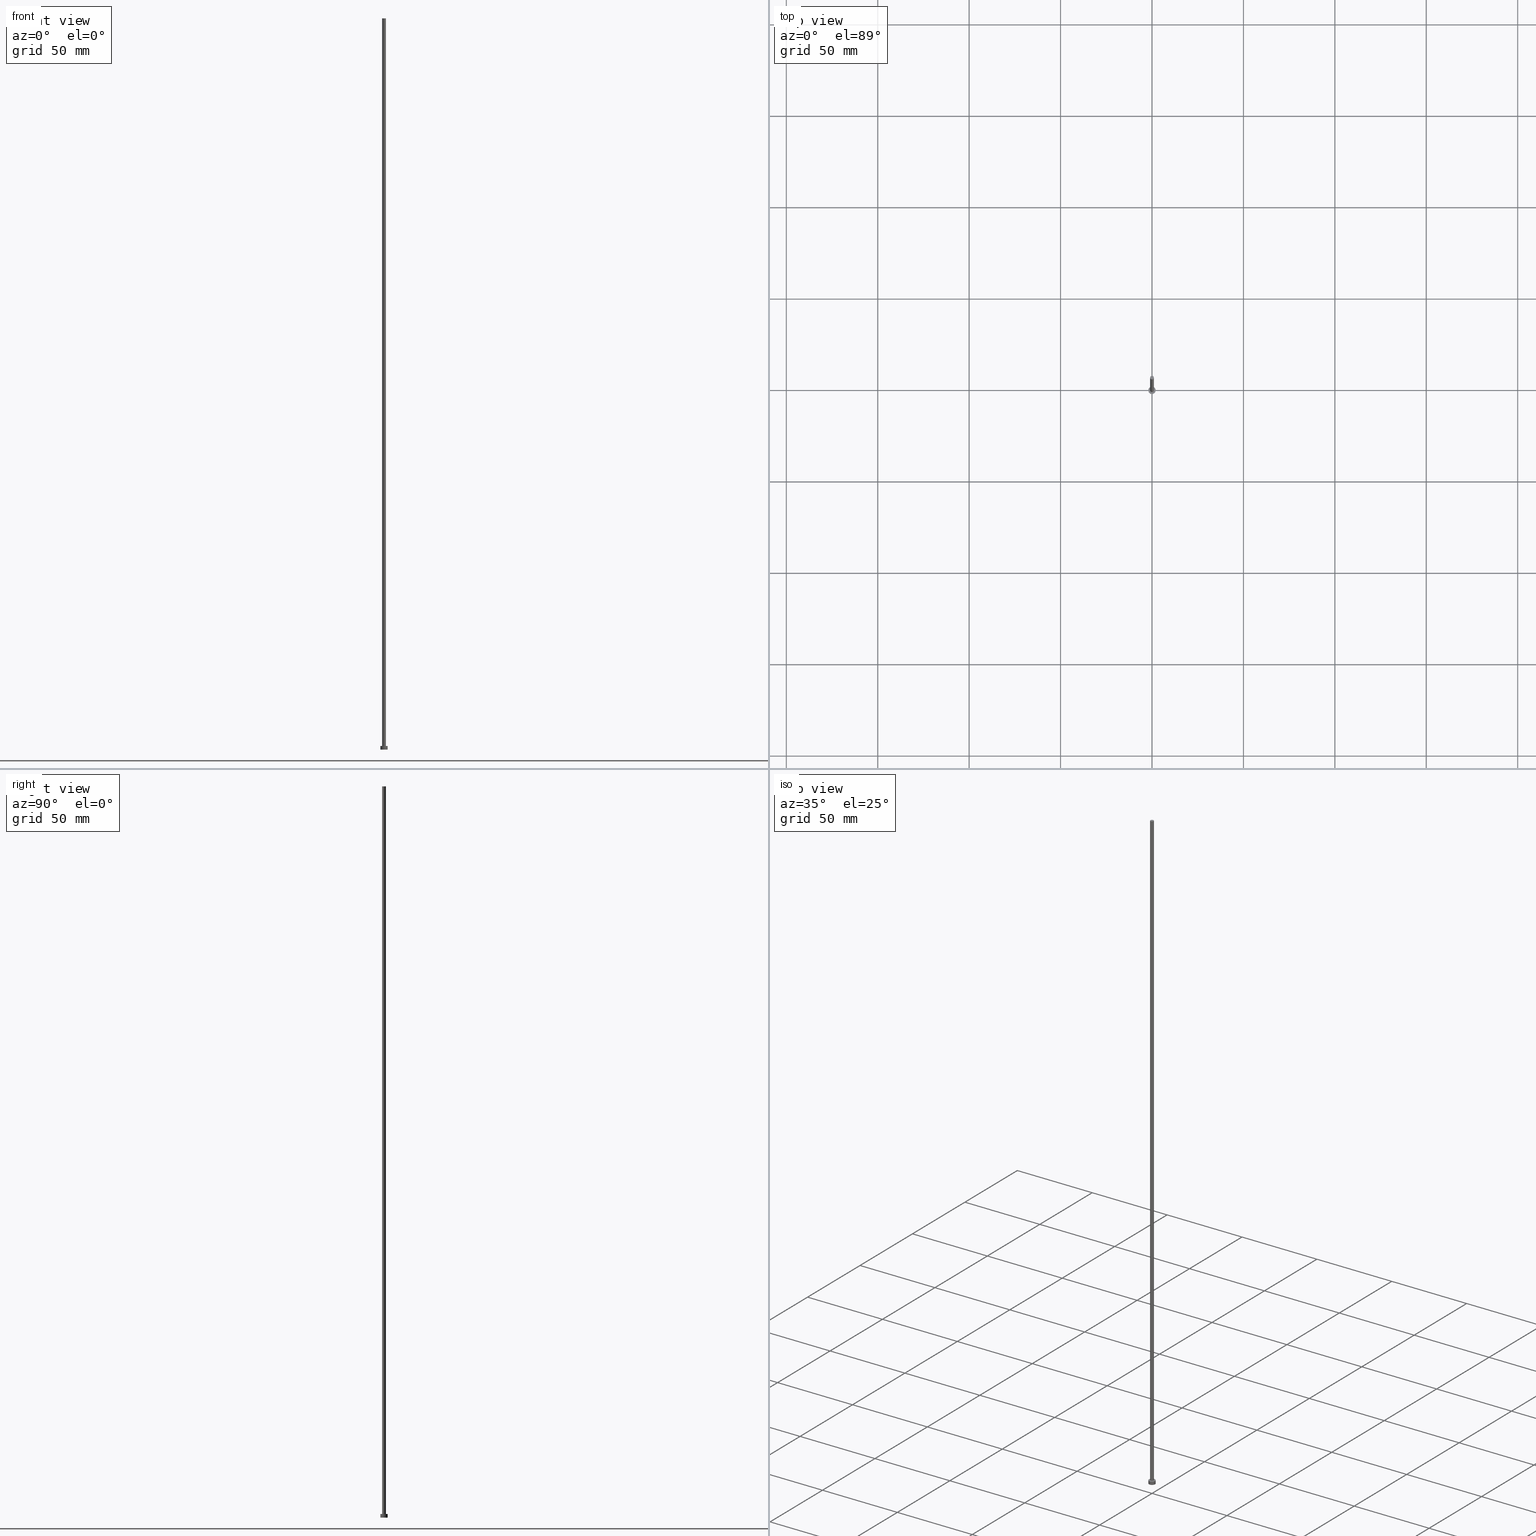
[diagram: canonical four-view strip — front | top / right | iso, engineering-drawing reading convention]
A machine part, canonical four-view strip (front | top / right | iso — engineering-drawing reading convention). The complete STEP part file that produces these views, byte-faithful:
ISO-10303-21;
HEADER;
FILE_DESCRIPTION (( 'STEP AP203' ),
    '1' );
FILE_NAME ('24b4.STEP',
    '2023-02-13T16:42:52',
    ( '' ),
    ( '' ),
    'SwSTEP 2.0',
    'SolidWorks 2019',
    '' );
FILE_SCHEMA (( 'CONFIG_CONTROL_DESIGN' ));
ENDSEC;

DATA;
#1 = AXIS2_PLACEMENT_3D ( 'NONE', #191, #171, #13 ) ;
#2 = ORIENTED_EDGE ( 'NONE', *, *, #123, .T. ) ;
#3 = CALENDAR_DATE ( 2023, 13, 2 ) ;
#4 = CARTESIAN_POINT ( 'NONE',  ( -1.000000000000000000, 0.000000000000000000, 400.0000000000000000 ) ) ;
#5 = LINE ( 'NONE', #135, #17 ) ;
#6 = APPROVAL ( #188, 'NEUR�EN�' ) ;
#7 = PERSON_AND_ORGANIZATION ( #32, #233 ) ;
#8 = LINE ( 'NONE', #113, #173 ) ;
#9 = DIRECTION ( 'NONE',  ( 1.000000000000000000, 0.000000000000000000, 0.000000000000000000 ) ) ;
#10 = DATE_AND_TIME ( #201, #175 ) ;
#11 = CARTESIAN_POINT ( 'NONE',  ( -1.000000000000000000, 0.000000000000000000, 400.0000000000000000 ) ) ;
#12 = DIRECTION ( 'NONE',  ( -0.000000000000000000, -0.000000000000000000, -1.000000000000000000 ) ) ;
#13 = DIRECTION ( 'NONE',  ( 1.000000000000000000, 0.000000000000000000, -0.000000000000000000 ) ) ;
#14 = DIRECTION ( 'NONE',  ( 1.000000000000000000, 0.000000000000000000, 0.000000000000000000 ) ) ;
#15 = CARTESIAN_POINT ( 'NONE',  ( 0.000000000000000000, 0.000000000000000000, 0.000000000000000000 ) ) ;
#16 = PRODUCT_DEFINITION_FORMATION_WITH_SPECIFIED_SOURCE ( 'LIBOVOLN�', '', #220, .NOT_KNOWN. ) ;
#17 = VECTOR ( 'NONE', #75, 1000.000000000000000 ) ;
#18 = ORIENTED_EDGE ( 'NONE', *, *, #84, .F. ) ;
#19 = PRODUCT_DEFINITION ( 'NEZN�M�', '', #16, #176 ) ;
#20 = PERSON_AND_ORGANIZATION_ROLE ( 'classification_officer' ) ;
#21 = AXIS2_PLACEMENT_3D ( 'NONE', #79, #184, #228 ) ;
#22 = ORIENTED_EDGE ( 'NONE', *, *, #124, .T. ) ;
#23 = CARTESIAN_POINT ( 'NONE',  ( 2.000000000000000000, 2.449293598294706414E-16, 0.000000000000000000 ) ) ;
#24 = APPLICATION_CONTEXT ( 'configuration controlled 3d designs of mechanical parts and assemblies' ) ;
#25 = PERSON_AND_ORGANIZATION ( #32, #233 ) ;
#26 = VERTEX_POINT ( 'NONE', #179 ) ;
#27 = DATE_AND_TIME ( #229, #121 ) ;
#28 = ORIENTED_EDGE ( 'NONE', *, *, #126, .F. ) ;
#29 = COORDINATED_UNIVERSAL_TIME_OFFSET ( 1, 0, .AHEAD. ) ;
#30 = COORDINATED_UNIVERSAL_TIME_OFFSET ( 1, 0, .AHEAD. ) ;
#31 = ORIENTED_EDGE ( 'NONE', *, *, #157, .T. ) ;
#32 = PERSON ( 'NEUR�EN�', 'NEUR�EN�', 'NEUR�EN�', ('NEUR�EN�'), ('NEUR�EN�'), ('NEUR�EN�') ) ;
#33 =( LENGTH_UNIT ( ) NAMED_UNIT ( * ) SI_UNIT ( .MILLI., .METRE. ) );
#34 = DIRECTION ( 'NONE',  ( 0.000000000000000000, 0.000000000000000000, 1.000000000000000000 ) ) ;
#35 = DIRECTION ( 'NONE',  ( 0.000000000000000000, 0.000000000000000000, 1.000000000000000000 ) ) ;
#36 = CARTESIAN_POINT ( 'NONE',  ( 2.000000000000000000, 2.449293598294706414E-16, 2.000000000000000000 ) ) ;
#37 = DIRECTION ( 'NONE',  ( 1.000000000000000000, 0.000000000000000000, 0.000000000000000000 ) ) ;
#38 = VECTOR ( 'NONE', #81, 1000.000000000000000 ) ;
#39 = LOCAL_TIME ( 17, 42, 52.00000000000000000, #141 ) ;
#40 = CC_DESIGN_APPROVAL ( #6, ( #16 ) ) ;
#41 = UNCERTAINTY_MEASURE_WITH_UNIT (LENGTH_MEASURE( 1.000000000000000082E-05 ), #33, 'distance_accuracy_value', 'NONE');
#42 = EDGE_CURVE ( 'NONE', #43, #99, #8, .T. ) ;
#43 = VERTEX_POINT ( 'NONE', #185 ) ;
#44 = FACE_OUTER_BOUND ( 'NONE', #88, .T. ) ;
#45 = DIRECTION ( 'NONE',  ( 1.000000000000000000, 0.000000000000000000, 0.000000000000000000 ) ) ;
#46 = COORDINATED_UNIVERSAL_TIME_OFFSET ( 1, 0, .AHEAD. ) ;
#47 = EDGE_LOOP ( 'NONE', ( #89, #2, #103, #167 ) ) ;
#48 = CYLINDRICAL_SURFACE ( 'NONE', #59, 1.000000000000000000 ) ;
#49 = PERSON_AND_ORGANIZATION ( #32, #233 ) ;
#50 = PLANE ( 'NONE',  #187 ) ;
#51 = CARTESIAN_POINT ( 'NONE',  ( 0.000000000000000000, 0.000000000000000000, 2.000000000000000000 ) ) ;
#52 = DATE_TIME_ROLE ( 'creation_date' ) ;
#53 = CARTESIAN_POINT ( 'NONE',  ( 0.000000000000000000, 0.000000000000000000, 400.0000000000000000 ) ) ;
#54 = PLANE ( 'NONE',  #80 ) ;
#55 = ADVANCED_FACE ( 'NONE', ( #226, #106 ), #50, .T. ) ;
#56 = CIRCLE ( 'NONE', #129, 1.000000000000000000 ) ;
#57 = DIRECTION ( 'NONE',  ( -1.000000000000000000, 0.000000000000000000, 0.000000000000000000 ) ) ;
#58 = APPROVAL ( #196, 'NEUR�EN�' ) ;
#59 = AXIS2_PLACEMENT_3D ( 'NONE', #137, #234, #231 ) ;
#60 = PERSON_AND_ORGANIZATION ( #32, #233 ) ;
#61 = ADVANCED_BREP_SHAPE_REPRESENTATION ( '24b4', ( #108, #149 ), #253 ) ;
#62 = CALENDAR_DATE ( 2023, 13, 2 ) ;
#63 = VERTEX_POINT ( 'NONE', #202 ) ;
#64 = EDGE_LOOP ( 'NONE', ( #110, #218, #242, #239 ) ) ;
#65 = CC_DESIGN_PERSON_AND_ORGANIZATION_ASSIGNMENT ( #60, #20, ( #156 ) ) ;
#66 = FACE_OUTER_BOUND ( 'NONE', #64, .T. ) ;
#67 = APPLICATION_CONTEXT ( 'configuration controlled 3d designs of mechanical parts and assemblies' ) ;
#68 = CYLINDRICAL_SURFACE ( 'NONE', #142, 1.000000000000000000 ) ;
#69 = VERTEX_POINT ( 'NONE', #4 ) ;
#70 = DIRECTION ( 'NONE',  ( 0.000000000000000000, 0.000000000000000000, 1.000000000000000000 ) ) ;
#71 = AXIS2_PLACEMENT_3D ( 'NONE', #51, #35, #119 ) ;
#72 = APPROVAL_ROLE ( '' ) ;
#73 = PERSON_AND_ORGANIZATION ( #32, #233 ) ;
#74 = VERTEX_POINT ( 'NONE', #23 ) ;
#75 = DIRECTION ( 'NONE',  ( -0.000000000000000000, -0.000000000000000000, -1.000000000000000000 ) ) ;
#76 = CYLINDRICAL_SURFACE ( 'NONE', #203, 2.000000000000000000 ) ;
#77 = ADVANCED_FACE ( 'NONE', ( #66 ), #164, .T. ) ;
#78 = LINE ( 'NONE', #11, #198 ) ;
#79 = CARTESIAN_POINT ( 'NONE',  ( 0.000000000000000000, 0.000000000000000000, 2.000000000000000000 ) ) ;
#80 = AXIS2_PLACEMENT_3D ( 'NONE', #249, #212, #247 ) ;
#81 = DIRECTION ( 'NONE',  ( -0.000000000000000000, -0.000000000000000000, -1.000000000000000000 ) ) ;
#82 = ADVANCED_FACE ( 'NONE', ( #44 ), #128, .T. ) ;
#83 = CIRCLE ( 'NONE', #159, 2.000000000000000000 ) ;
#84 = EDGE_CURVE ( 'NONE', #63, #74, #83, .T. ) ;
#85 = AXIS2_PLACEMENT_3D ( 'NONE', #186, #213, #37 ) ;
#86 = AXIS2_PLACEMENT_3D ( 'NONE', #96, #246, #210 ) ;
#87 = CC_DESIGN_DATE_AND_TIME_ASSIGNMENT ( #27, #52, ( #19 ) ) ;
#88 = EDGE_LOOP ( 'NONE', ( #22, #243 ) ) ;
#89 = ORIENTED_EDGE ( 'NONE', *, *, #197, .F. ) ;
#90 = CC_DESIGN_SECURITY_CLASSIFICATION ( #156, ( #16 ) ) ;
#91 = ORIENTED_EDGE ( 'NONE', *, *, #157, .F. ) ;
#92 = EDGE_LOOP ( 'NONE', ( #183, #91 ) ) ;
#93 = APPLICATION_PROTOCOL_DEFINITION ( 'international standard', 'config_control_design', 1994, #67 ) ;
#94 = EDGE_LOOP ( 'NONE', ( #166, #180 ) ) ;
#95 = CIRCLE ( 'NONE', #71, 2.000000000000000000 ) ;
#96 = CARTESIAN_POINT ( 'NONE',  ( 0.000000000000000000, 0.000000000000000000, 400.0000000000000000 ) ) ;
#97 = CARTESIAN_POINT ( 'NONE',  ( 1.000000000000000000, 1.224646799147353207E-16, 2.000000000000000000 ) ) ;
#98 = CARTESIAN_POINT ( 'NONE',  ( -2.000000000000000000, 0.000000000000000000, 2.000000000000000000 ) ) ;
#99 = VERTEX_POINT ( 'NONE', #97 ) ;
#100 = CC_DESIGN_APPROVAL ( #177, ( #19 ) ) ;
#101 = CC_DESIGN_PERSON_AND_ORGANIZATION_ASSIGNMENT ( #73, #207, ( #220 ) ) ;
#102 = ADVANCED_FACE ( 'NONE', ( #248 ), #76, .T. ) ;
#103 = ORIENTED_EDGE ( 'NONE', *, *, #126, .T. ) ;
#104 = SHAPE_DEFINITION_REPRESENTATION ( #235, #61 ) ;
#105 = APPLICATION_PROTOCOL_DEFINITION ( 'international standard', 'config_control_design', 1994, #24 ) ;
#106 = FACE_OUTER_BOUND ( 'NONE', #94, .T. ) ;
#107 = AXIS2_PLACEMENT_3D ( 'NONE', #219, #134, #221 ) ;
#108 = MANIFOLD_SOLID_BREP ( 'P�idat vysunut�m3', #194 ) ;
#109 = APPROVAL_STATUS ( 'not_yet_approved' ) ;
#110 = ORIENTED_EDGE ( 'NONE', *, *, #123, .F. ) ;
#111 = CARTESIAN_POINT ( 'NONE',  ( -1.000000000000000000, 0.000000000000000000, 2.000000000000000000 ) ) ;
#112 = CALENDAR_DATE ( 2023, 13, 2 ) ;
#113 = CARTESIAN_POINT ( 'NONE',  ( 1.000000000000000000, 1.224646799147353207E-16, 400.0000000000000000 ) ) ;
#114 = MECHANICAL_CONTEXT ( 'NONE', #67, 'mechanical' ) ;
#115 = APPROVAL_DATE_TIME ( #200, #58 ) ;
#116 = EDGE_CURVE ( 'NONE', #69, #224, #78, .T. ) ;
#117 = APPROVAL_DATE_TIME ( #10, #6 ) ;
#118 = CARTESIAN_POINT ( 'NONE',  ( 0.000000000000000000, 0.000000000000000000, 0.000000000000000000 ) ) ;
#119 = DIRECTION ( 'NONE',  ( 1.000000000000000000, 0.000000000000000000, 0.000000000000000000 ) ) ;
#120 = CC_DESIGN_PERSON_AND_ORGANIZATION_ASSIGNMENT ( #49, #223, ( #19 ) ) ;
#121 = LOCAL_TIME ( 17, 42, 52.00000000000000000, #46 ) ;
#122 = PERSON_AND_ORGANIZATION_ROLE ( 'design_supplier' ) ;
#123 = EDGE_CURVE ( 'NONE', #26, #74, #250, .T. ) ;
#124 = EDGE_CURVE ( 'NONE', #69, #43, #144, .T. ) ;
#125 = PERSON_AND_ORGANIZATION ( #32, #233 ) ;
#126 = EDGE_CURVE ( 'NONE', #74, #63, #214, .T. ) ;
#127 = COORDINATED_UNIVERSAL_TIME_OFFSET ( 1, 0, .AHEAD. ) ;
#128 = PLANE ( 'NONE',  #1 ) ;
#129 = AXIS2_PLACEMENT_3D ( 'NONE', #53, #34, #14 ) ;
#130 =( NAMED_UNIT ( * ) PLANE_ANGLE_UNIT ( ) SI_UNIT ( $, .RADIAN. ) );
#131 = EDGE_LOOP ( 'NONE', ( #18, #28 ) ) ;
#132 = CC_DESIGN_PERSON_AND_ORGANIZATION_ASSIGNMENT ( #238, #122, ( #16 ) ) ;
#133 = CARTESIAN_POINT ( 'NONE',  ( 0.000000000000000000, 0.000000000000000000, 0.000000000000000000 ) ) ;
#134 = DIRECTION ( 'NONE',  ( -0.000000000000000000, -0.000000000000000000, -1.000000000000000000 ) ) ;
#135 = CARTESIAN_POINT ( 'NONE',  ( -2.000000000000000000, 0.000000000000000000, 2.000000000000000000 ) ) ;
#136 = DIRECTION ( 'NONE',  ( -0.000000000000000000, -0.000000000000000000, -1.000000000000000000 ) ) ;
#137 = CARTESIAN_POINT ( 'NONE',  ( 0.000000000000000000, 0.000000000000000000, 400.0000000000000000 ) ) ;
#138 = AXIS2_PLACEMENT_3D ( 'NONE', #15, #154, #230 ) ;
#139 = DIRECTION ( 'NONE',  ( 0.000000000000000000, 0.000000000000000000, 1.000000000000000000 ) ) ;
#140 = APPROVAL_PERSON_ORGANIZATION ( #25, #177, #182 ) ;
#141 = COORDINATED_UNIVERSAL_TIME_OFFSET ( 1, 0, .AHEAD. ) ;
#142 = AXIS2_PLACEMENT_3D ( 'NONE', #190, #12, #225 ) ;
#143 = DATE_AND_TIME ( #62, #39 ) ;
#144 = CIRCLE ( 'NONE', #86, 1.000000000000000000 ) ;
#145 = ORIENTED_EDGE ( 'NONE', *, *, #42, .T. ) ;
#146 = EDGE_CURVE ( 'NONE', #43, #69, #56, .T. ) ;
#147 = CARTESIAN_POINT ( 'NONE',  ( 0.000000000000000000, 0.000000000000000000, 2.000000000000000000 ) ) ;
#148 = EDGE_LOOP ( 'NONE', ( #178, #145, #31, #204 ) ) ;
#149 = AXIS2_PLACEMENT_3D ( 'NONE', #133, #70, #9 ) ;
#150 = FACE_OUTER_BOUND ( 'NONE', #208, .T. ) ;
#151 = APPROVAL_ROLE ( '' ) ;
#152 = DIRECTION ( 'NONE',  ( -0.000000000000000000, -0.000000000000000000, -1.000000000000000000 ) ) ;
#153 = DATE_AND_TIME ( #3, #211 ) ;
#154 = DIRECTION ( 'NONE',  ( 0.000000000000000000, 0.000000000000000000, 1.000000000000000000 ) ) ;
#155 = DIRECTION ( 'NONE',  ( 1.000000000000000000, 0.000000000000000000, 0.000000000000000000 ) ) ;
#156 = SECURITY_CLASSIFICATION ( '', '', #195 ) ;
#157 = EDGE_CURVE ( 'NONE', #99, #224, #237, .T. ) ;
#158 = CIRCLE ( 'NONE', #193, 1.000000000000000000 ) ;
#159 = AXIS2_PLACEMENT_3D ( 'NONE', #118, #139, #155 ) ;
#160 = ORIENTED_EDGE ( 'NONE', *, *, #227, .T. ) ;
#161 = PRODUCT_RELATED_PRODUCT_CATEGORY ( 'detail', '', ( #220 ) ) ;
#162 = APPROVAL_PERSON_ORGANIZATION ( #7, #6, #151 ) ;
#163 = PERSON_AND_ORGANIZATION_ROLE ( 'creator' ) ;
#164 = CYLINDRICAL_SURFACE ( 'NONE', #107, 2.000000000000000000 ) ;
#165 = ORIENTED_EDGE ( 'NONE', *, *, #124, .F. ) ;
#166 = ORIENTED_EDGE ( 'NONE', *, *, #189, .T. ) ;
#167 = ORIENTED_EDGE ( 'NONE', *, *, #217, .F. ) ;
#168 = LOCAL_TIME ( 17, 42, 52.00000000000000000, #29 ) ;
#169 = DIRECTION ( 'NONE',  ( -0.000000000000000000, -0.000000000000000000, -1.000000000000000000 ) ) ;
#170 =( NAMED_UNIT ( * ) SI_UNIT ( $, .STERADIAN. ) SOLID_ANGLE_UNIT ( ) );
#171 = DIRECTION ( 'NONE',  ( 0.000000000000000000, 0.000000000000000000, 1.000000000000000000 ) ) ;
#172 = FACE_OUTER_BOUND ( 'NONE', #148, .T. ) ;
#173 = VECTOR ( 'NONE', #152, 1000.000000000000000 ) ;
#174 = ADVANCED_FACE ( 'NONE', ( #150 ), #48, .T. ) ;
#175 = LOCAL_TIME ( 17, 42, 52.00000000000000000, #30 ) ;
#176 = DESIGN_CONTEXT ( 'detailed design', #24, 'design' ) ;
#177 = APPROVAL ( #109, 'NEUR�EN�' ) ;
#178 = ORIENTED_EDGE ( 'NONE', *, *, #146, .F. ) ;
#179 = CARTESIAN_POINT ( 'NONE',  ( 2.000000000000000000, 2.449293598294706414E-16, 2.000000000000000000 ) ) ;
#180 = ORIENTED_EDGE ( 'NONE', *, *, #197, .T. ) ;
#181 = ADVANCED_FACE ( 'NONE', ( #192 ), #54, .F. ) ;
#182 = APPROVAL_ROLE ( '' ) ;
#183 = ORIENTED_EDGE ( 'NONE', *, *, #227, .F. ) ;
#184 = DIRECTION ( 'NONE',  ( 0.000000000000000000, 0.000000000000000000, 1.000000000000000000 ) ) ;
#185 = CARTESIAN_POINT ( 'NONE',  ( 1.000000000000000000, 1.224646799147353207E-16, 400.0000000000000000 ) ) ;
#186 = CARTESIAN_POINT ( 'NONE',  ( 0.000000000000000000, 0.000000000000000000, 2.000000000000000000 ) ) ;
#187 = AXIS2_PLACEMENT_3D ( 'NONE', #147, #241, #255 ) ;
#188 = APPROVAL_STATUS ( 'not_yet_approved' ) ;
#189 = EDGE_CURVE ( 'NONE', #254, #26, #222, .T. ) ;
#190 = CARTESIAN_POINT ( 'NONE',  ( 0.000000000000000000, 0.000000000000000000, 400.0000000000000000 ) ) ;
#191 = CARTESIAN_POINT ( 'NONE',  ( 0.000000000000000000, 0.000000000000000000, 400.0000000000000000 ) ) ;
#192 = FACE_OUTER_BOUND ( 'NONE', #131, .T. ) ;
#193 = AXIS2_PLACEMENT_3D ( 'NONE', #244, #206, #45 ) ;
#194 = CLOSED_SHELL ( 'NONE', ( #252, #102, #77, #55, #181, #174, #82 ) ) ;
#195 = SECURITY_CLASSIFICATION_LEVEL ( 'unclassified' ) ;
#196 = APPROVAL_STATUS ( 'not_yet_approved' ) ;
#197 = EDGE_CURVE ( 'NONE', #26, #254, #95, .T. ) ;
#198 = VECTOR ( 'NONE', #136, 1000.000000000000000 ) ;
#199 = ORIENTED_EDGE ( 'NONE', *, *, #116, .T. ) ;
#200 = DATE_AND_TIME ( #112, #168 ) ;
#201 = CALENDAR_DATE ( 2023, 13, 2 ) ;
#202 = CARTESIAN_POINT ( 'NONE',  ( -2.000000000000000000, 0.000000000000000000, 0.000000000000000000 ) ) ;
#203 = AXIS2_PLACEMENT_3D ( 'NONE', #232, #169, #57 ) ;
#204 = ORIENTED_EDGE ( 'NONE', *, *, #116, .F. ) ;
#205 = ORIENTED_EDGE ( 'NONE', *, *, #42, .F. ) ;
#206 = DIRECTION ( 'NONE',  ( 0.000000000000000000, 0.000000000000000000, 1.000000000000000000 ) ) ;
#207 = PERSON_AND_ORGANIZATION_ROLE ( 'design_owner' ) ;
#208 = EDGE_LOOP ( 'NONE', ( #205, #165, #199, #160 ) ) ;
#209 = APPROVAL_DATE_TIME ( #153, #177 ) ;
#210 = DIRECTION ( 'NONE',  ( 1.000000000000000000, 0.000000000000000000, 0.000000000000000000 ) ) ;
#211 = LOCAL_TIME ( 17, 42, 52.00000000000000000, #127 ) ;
#212 = DIRECTION ( 'NONE',  ( 0.000000000000000000, 0.000000000000000000, 1.000000000000000000 ) ) ;
#213 = DIRECTION ( 'NONE',  ( 0.000000000000000000, 0.000000000000000000, 1.000000000000000000 ) ) ;
#214 = CIRCLE ( 'NONE', #138, 2.000000000000000000 ) ;
#215 = APPROVAL_PERSON_ORGANIZATION ( #125, #58, #72 ) ;
#216 = DATE_TIME_ROLE ( 'classification_date' ) ;
#217 = EDGE_CURVE ( 'NONE', #254, #63, #5, .T. ) ;
#218 = ORIENTED_EDGE ( 'NONE', *, *, #189, .F. ) ;
#219 = CARTESIAN_POINT ( 'NONE',  ( 0.000000000000000000, 0.000000000000000000, 2.000000000000000000 ) ) ;
#220 = PRODUCT ( '24b4', '24b4', '', ( #114 ) ) ;
#221 = DIRECTION ( 'NONE',  ( -1.000000000000000000, 0.000000000000000000, 0.000000000000000000 ) ) ;
#222 = CIRCLE ( 'NONE', #21, 2.000000000000000000 ) ;
#223 = PERSON_AND_ORGANIZATION_ROLE ( 'creator' ) ;
#224 = VERTEX_POINT ( 'NONE', #111 ) ;
#225 = DIRECTION ( 'NONE',  ( -1.000000000000000000, 0.000000000000000000, 0.000000000000000000 ) ) ;
#226 = FACE_BOUND ( 'NONE', #92, .T. ) ;
#227 = EDGE_CURVE ( 'NONE', #224, #99, #158, .T. ) ;
#228 = DIRECTION ( 'NONE',  ( 1.000000000000000000, 0.000000000000000000, 0.000000000000000000 ) ) ;
#229 = CALENDAR_DATE ( 2023, 13, 2 ) ;
#230 = DIRECTION ( 'NONE',  ( 1.000000000000000000, 0.000000000000000000, 0.000000000000000000 ) ) ;
#231 = DIRECTION ( 'NONE',  ( -1.000000000000000000, 0.000000000000000000, 0.000000000000000000 ) ) ;
#232 = CARTESIAN_POINT ( 'NONE',  ( 0.000000000000000000, 0.000000000000000000, 2.000000000000000000 ) ) ;
#233 = ORGANIZATION ( 'NEUR�EN�', 'NEUR�EN�', '' ) ;
#234 = DIRECTION ( 'NONE',  ( -0.000000000000000000, -0.000000000000000000, -1.000000000000000000 ) ) ;
#235 = PRODUCT_DEFINITION_SHAPE ( 'NONE', 'NONE',  #19 ) ;
#236 = CC_DESIGN_PERSON_AND_ORGANIZATION_ASSIGNMENT ( #245, #163, ( #16 ) ) ;
#237 = CIRCLE ( 'NONE', #85, 1.000000000000000000 ) ;
#238 = PERSON_AND_ORGANIZATION ( #32, #233 ) ;
#239 = ORIENTED_EDGE ( 'NONE', *, *, #84, .T. ) ;
#240 = CC_DESIGN_DATE_AND_TIME_ASSIGNMENT ( #143, #216, ( #156 ) ) ;
#241 = DIRECTION ( 'NONE',  ( 0.000000000000000000, 0.000000000000000000, 1.000000000000000000 ) ) ;
#242 = ORIENTED_EDGE ( 'NONE', *, *, #217, .T. ) ;
#243 = ORIENTED_EDGE ( 'NONE', *, *, #146, .T. ) ;
#244 = CARTESIAN_POINT ( 'NONE',  ( 0.000000000000000000, 0.000000000000000000, 2.000000000000000000 ) ) ;
#245 = PERSON_AND_ORGANIZATION ( #32, #233 ) ;
#246 = DIRECTION ( 'NONE',  ( 0.000000000000000000, 0.000000000000000000, 1.000000000000000000 ) ) ;
#247 = DIRECTION ( 'NONE',  ( 1.000000000000000000, 0.000000000000000000, -0.000000000000000000 ) ) ;
#248 = FACE_OUTER_BOUND ( 'NONE', #47, .T. ) ;
#249 = CARTESIAN_POINT ( 'NONE',  ( 0.000000000000000000, 0.000000000000000000, 0.000000000000000000 ) ) ;
#250 = LINE ( 'NONE', #36, #38 ) ;
#251 = CC_DESIGN_APPROVAL ( #58, ( #156 ) ) ;
#252 = ADVANCED_FACE ( 'NONE', ( #172 ), #68, .T. ) ;
#253 =( GEOMETRIC_REPRESENTATION_CONTEXT ( 3 ) GLOBAL_UNCERTAINTY_ASSIGNED_CONTEXT ( ( #41 ) ) GLOBAL_UNIT_ASSIGNED_CONTEXT ( ( #33, #130, #170 ) ) REPRESENTATION_CONTEXT ( 'NONE', 'WORKASPACE' ) );
#254 = VERTEX_POINT ( 'NONE', #98 ) ;
#255 = DIRECTION ( 'NONE',  ( 1.000000000000000000, 0.000000000000000000, -0.000000000000000000 ) ) ;
ENDSEC;
END-ISO-10303-21;
